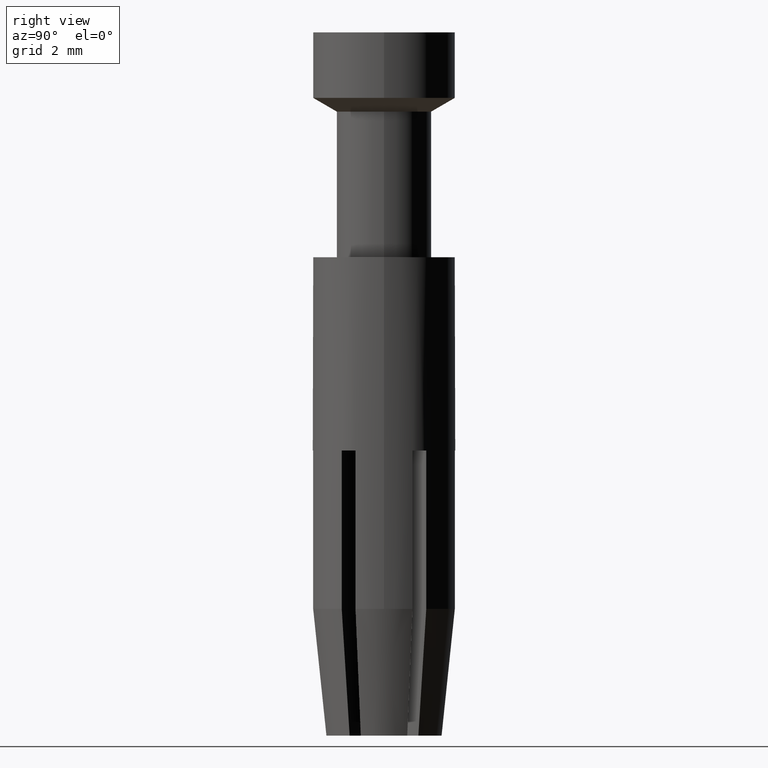
[diagram: clean part render]
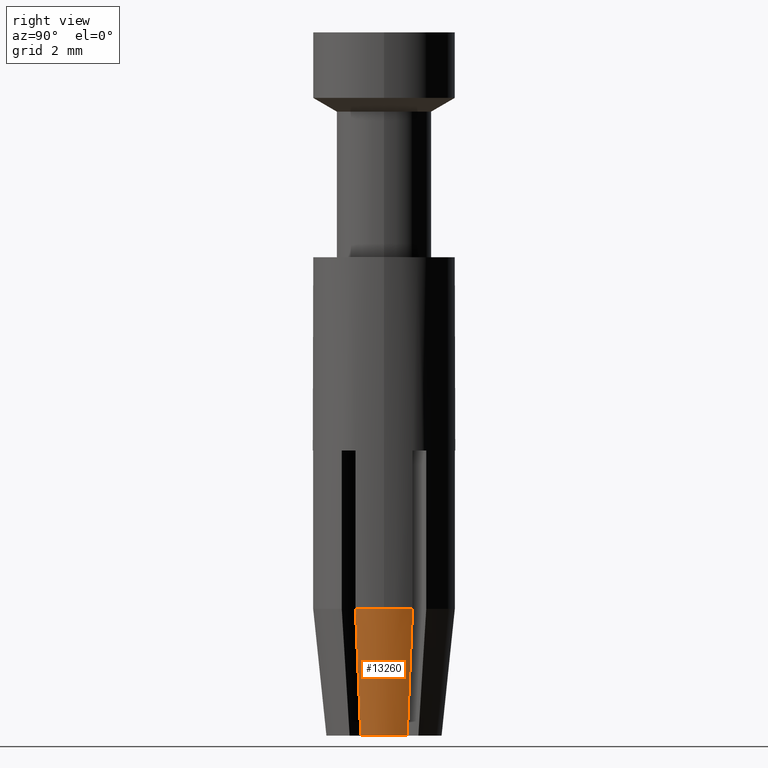
[diagram: same view with one face highlighted and labeled with its STEP entity id]
A machine part, right view. The second image highlights one B-rep face of the part: STEP entity #13260.
In plain terms, the highlighted conical surface has half-angle 6 deg.
Its self-contained STEP definition (entity closure, byte-faithful):
#100=CARTESIAN_POINT('',(28.500556,42.17405,23.4999999999999));
#110=VERTEX_POINT('',#100);
#160=CARTESIAN_POINT('',(30.750556,42.17405,23.4999999999999));
#170=DIRECTION('',(0.,0.,-1.));
#180=DIRECTION('',(-1.,0.,0.));
#190=AXIS2_PLACEMENT_3D('',#160,#170,#180);
#200=CIRCLE('',#190,2.25);
#210=CARTESIAN_POINT('',(28.6890643268963,41.2725223621962,23.5));
#220=VERTEX_POINT('',#210);
#230=EDGE_CURVE('',#220,#110,#200,.T.);
#9050=CARTESIAN_POINT('',(29.0742581149996,42.9071254192398,27.5));
#9060=VERTEX_POINT('',#9050);
#9090=CARTESIAN_POINT('',(28.3368796818446,43.2295943603871,
19.8427795989566));
#9100=DIRECTION('',(-0.095770914057153,0.04188235492131,
-0.994521895368273));
#9110=VECTOR('',#9100,25.2026029188254);
#9120=LINE('',#9090,#9110);
#9130=CARTESIAN_POINT('',(28.6890643268963,43.0755776378038,
23.4999999999999));
#9140=VERTEX_POINT('',#9130);
#9150=EDGE_CURVE('',#9060,#9140,#9120,.T.);
#10670=CARTESIAN_POINT('',(28.3368796818446,41.1185056396129,
19.8427795989566));
#10680=DIRECTION('',(-0.0957709140571531,-0.04188235492131,
-0.994521895368273));
#10690=VECTOR('',#10680,25.2026029188254);
#10700=LINE('',#10670,#10690);
#10710=CARTESIAN_POINT('',(29.0742581149996,41.4409745807602,27.5));
#10720=VERTEX_POINT('',#10710);
#10730=EDGE_CURVE('',#10720,#220,#10700,.T.);
#12940=CARTESIAN_POINT('',(30.750556,42.17405,27.5));
#12950=DIRECTION('',(0.,0.,-1.));
#12960=DIRECTION('',(-1.,0.,0.));
#12970=AXIS2_PLACEMENT_3D('',#12940,#12950,#12960);
#12980=CIRCLE('',#12970,1.82958305893729);
#12990=EDGE_CURVE('',#10720,#9060,#12980,.T.);
#13130=CARTESIAN_POINT('',(30.750556,42.17405,19.8427795989566));
#13140=DIRECTION('',(0.,0.,-1.));
#13150=DIRECTION('',(-1.,0.,-0.));
#13160=AXIS2_PLACEMENT_3D('',#13130,#13140,#13150);
#13170=CONICAL_SURFACE('',#13160,2.6343893534497,0.10471975511966);
#13180=ORIENTED_EDGE('',*,*,#10730,.F.);
#13190=ORIENTED_EDGE('',*,*,#230,.F.);
#13200=EDGE_CURVE('',#110,#9140,#200,.T.);
#13210=ORIENTED_EDGE('',*,*,#13200,.F.);
#13220=ORIENTED_EDGE('',*,*,#9150,.T.);
#13230=ORIENTED_EDGE('',*,*,#12990,.T.);
#13240=EDGE_LOOP('',(#13230,#13220,#13210,#13190,#13180));
#13250=FACE_OUTER_BOUND('',#13240,.T.);
#13260=ADVANCED_FACE('',(#13250),#13170,.T.);